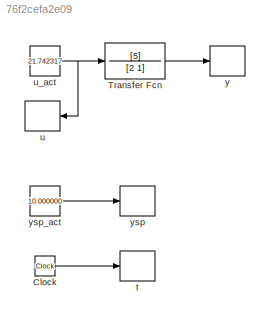
MODEL slx_76f2cefa2e09
KIND model
CONFIG AbsTol = auto
CONFIG EnableMultiTasking = off
CONFIG FixedStep = auto
CONFIG MaxStep = auto
CONFIG MinStep = auto
CONFIG RelTol = 1e-3
CONFIG SampleTimeConstraint = Unconstrained
CONFIG SolverName = VariableStepAuto
CONFIG StartTime = 0.0
CONFIG StopTime = inf
BLOCK [Clock] Clock
BLOCK [TransferFcn] Transfer Fcn
  Denominator = [2 1]
  Numerator = [5]
BLOCK [ToWorkspace] t
  FixptAsFi = on
  MaxDataPoints = inf
  Ports = [1]
  SampleTime = 0.010000
  Save2DSignal = 2-D array (concatenate along first dimension)
  VariableName = t
BLOCK [ToWorkspace] u
  FixptAsFi = on
  MaxDataPoints = inf
  Ports = [1]
  SampleTime = 0.010000
  Save2DSignal = 2-D array (concatenate along first dimension)
  VariableName = u
BLOCK [Constant] u_act
  Value = 21.742317
BLOCK [ToWorkspace] y
  FixptAsFi = on
  MaxDataPoints = inf
  Ports = [1]
  SampleTime = 0.010000
  Save2DSignal = 2-D array (concatenate along first dimension)
  VariableName = y
BLOCK [ToWorkspace] ysp
  FixptAsFi = on
  MaxDataPoints = inf
  Ports = [1]
  SampleTime = 0.010000
  Save2DSignal = 2-D array (concatenate along first dimension)
  VariableName = ysp
BLOCK [Constant] ysp_act
  Value = 10.000000
LINE Clock:1 -> t:1
LINE Transfer Fcn:1 -> y:1
NET u_act:1 -> Transfer Fcn:1, u:1
LINE ysp_act:1 -> ysp:1
note: NET lines group one-source signal fan-out (src -> all destinations, sorted); 1:1 wires keep LINE
